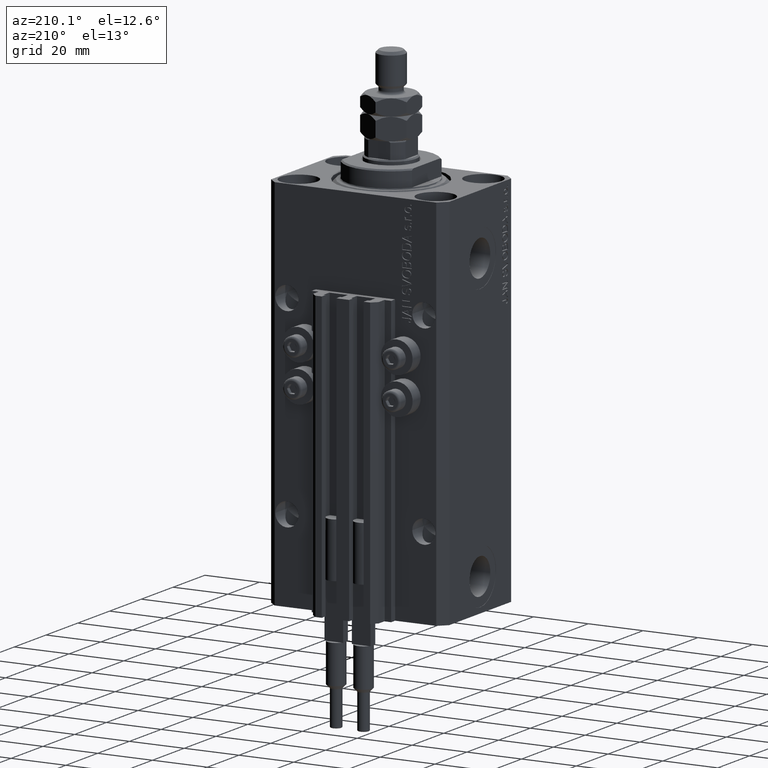
[diagram: clean part render]
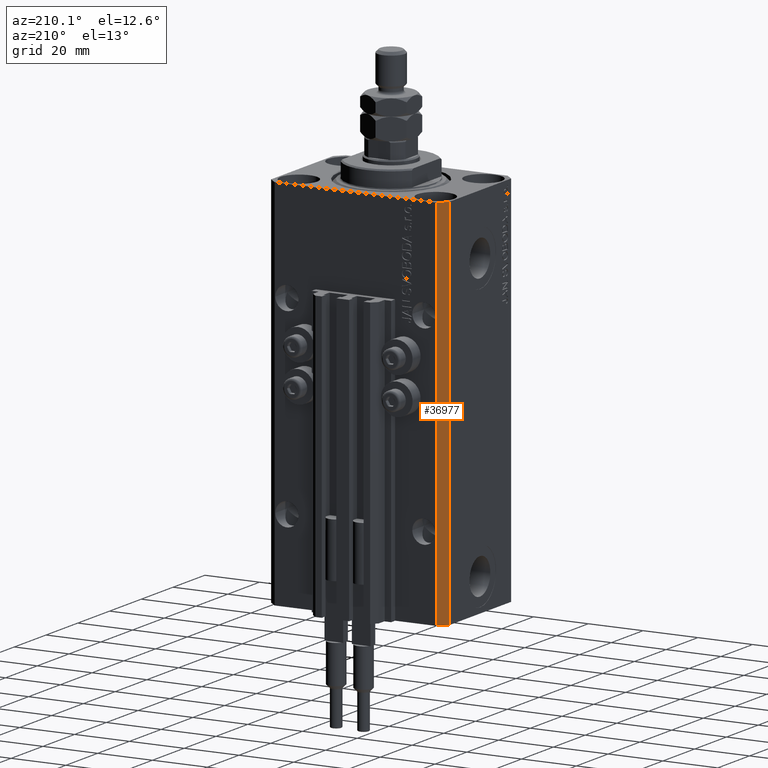
[diagram: same view with one face highlighted and labeled with its STEP entity id]
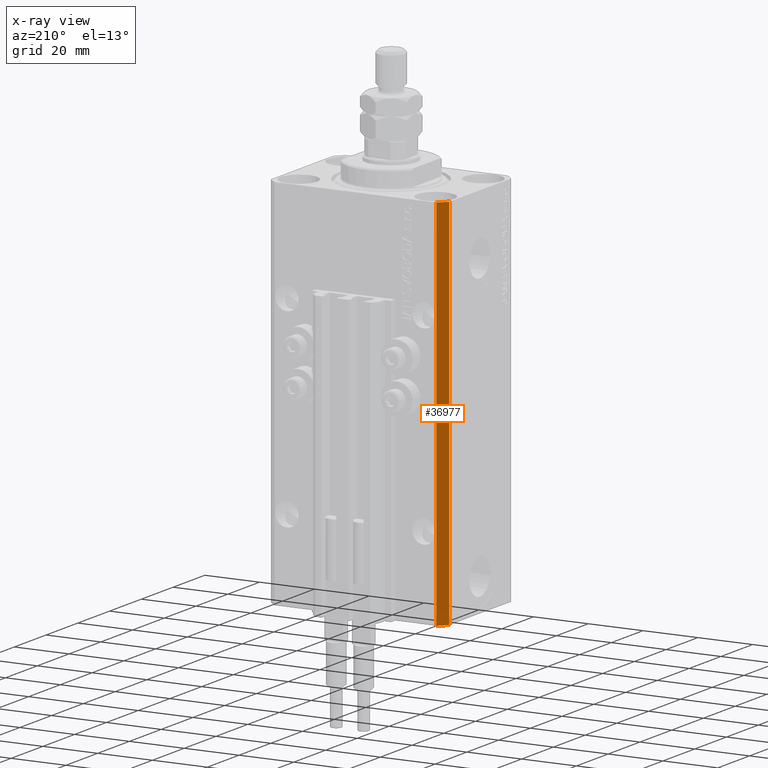
[diagram: x-ray of the same camera — body ghosted, the highlighted face saturated]
A machine part, auxiliary view. The second image highlights one B-rep face of the part: STEP entity #36977.
The next image is the same camera in x-ray: the body ghosted, the highlighted face saturated — about 0% of this face is hidden behind the body in this view.
In plain terms, the highlighted planar face has unit normal (-0.7071, 0.7071, 0).
Its self-contained STEP definition (entity closure, byte-faithful):
#608 = AXIS2_PLACEMENT_3D ( 'NONE', #14844, #11001, #50206 ) ;
#767 = EDGE_LOOP ( 'NONE', ( #16453, #9370, #36636, #12907 ) ) ;
#4048 = DIRECTION ( 'NONE',  ( -0.7071067811865474617, -0.7071067811865474617, 0.000000000000000000 ) ) ;
#4542 = CARTESIAN_POINT ( 'NONE',  ( -29.49999999999650413, 22.49999999999949907, 0.000000000000000000 ) ) ;
#4626 = CARTESIAN_POINT ( 'NONE',  ( -29.49999999999650413, 22.49999999999949907, 0.000000000000000000 ) ) ;
#6379 = CARTESIAN_POINT ( 'NONE',  ( -29.49999999999650413, 22.49999999999949907, -137.0000000000000000 ) ) ;
#6623 = LINE ( 'NONE', #6379, #49481 ) ;
#9370 = ORIENTED_EDGE ( 'NONE', *, *, #11069, .F. ) ;
#11001 = DIRECTION ( 'NONE',  ( -0.7071067811865475727, 0.7071067811865475727, 0.000000000000000000 ) ) ;
#11069 = EDGE_CURVE ( 'NONE', #16089, #33942, #6623, .T. ) ;
#12907 = ORIENTED_EDGE ( 'NONE', *, *, #33776, .T. ) ;
#12979 = CARTESIAN_POINT ( 'NONE',  ( -32.49999999999650413, 19.49999999999949907, -137.0000000000000000 ) ) ;
#14844 = CARTESIAN_POINT ( 'NONE',  ( -29.49999999999650413, 22.49999999999949907, -137.0000000000000000 ) ) ;
#15097 = FACE_OUTER_BOUND ( 'NONE', #767, .T. ) ;
#15148 = CARTESIAN_POINT ( 'NONE',  ( -29.49999999999650413, 22.49999999999949907, -137.0000000000000000 ) ) ;
#16089 = VERTEX_POINT ( 'NONE', #33307 ) ;
#16453 = ORIENTED_EDGE ( 'NONE', *, *, #39248, .F. ) ;
#17978 = DIRECTION ( 'NONE',  ( 0.000000000000000000, 0.000000000000000000, 1.000000000000000000 ) ) ;
#22244 = DIRECTION ( 'NONE',  ( 0.000000000000000000, 0.000000000000000000, 1.000000000000000000 ) ) ;
#25925 = LINE ( 'NONE', #15148, #34117 ) ;
#26633 = PLANE ( 'NONE',  #608 ) ;
#27335 = LINE ( 'NONE', #4542, #40771 ) ;
#29744 = CARTESIAN_POINT ( 'NONE',  ( -32.49999999999650413, 19.49999999999949907, -137.0000000000000000 ) ) ;
#33307 = CARTESIAN_POINT ( 'NONE',  ( -29.49999999999650413, 22.49999999999949907, -137.0000000000000000 ) ) ;
#33776 = EDGE_CURVE ( 'NONE', #44388, #36927, #46378, .T. ) ;
#33942 = VERTEX_POINT ( 'NONE', #4626 ) ;
#34117 = VECTOR ( 'NONE', #34868, 1000.000000000000114 ) ;
#34868 = DIRECTION ( 'NONE',  ( -0.7071067811865474617, -0.7071067811865474617, 0.000000000000000000 ) ) ;
#36189 = EDGE_CURVE ( 'NONE', #16089, #44388, #25925, .T. ) ;
#36636 = ORIENTED_EDGE ( 'NONE', *, *, #36189, .T. ) ;
#36927 = VERTEX_POINT ( 'NONE', #37950 ) ;
#36977 = ADVANCED_FACE ( 'NONE', ( #15097 ), #26633, .T. ) ;
#37950 = CARTESIAN_POINT ( 'NONE',  ( -32.49999999999650413, 19.49999999999949907, 0.000000000000000000 ) ) ;
#39248 = EDGE_CURVE ( 'NONE', #33942, #36927, #27335, .T. ) ;
#40669 = VECTOR ( 'NONE', #17978, 1000.000000000000000 ) ;
#40771 = VECTOR ( 'NONE', #4048, 1000.000000000000114 ) ;
#44388 = VERTEX_POINT ( 'NONE', #12979 ) ;
#46378 = LINE ( 'NONE', #29744, #40669 ) ;
#49481 = VECTOR ( 'NONE', #22244, 1000.000000000000000 ) ;
#50206 = DIRECTION ( 'NONE',  ( -0.7071067811865474617, -0.7071067811865474617, 0.000000000000000000 ) ) ;